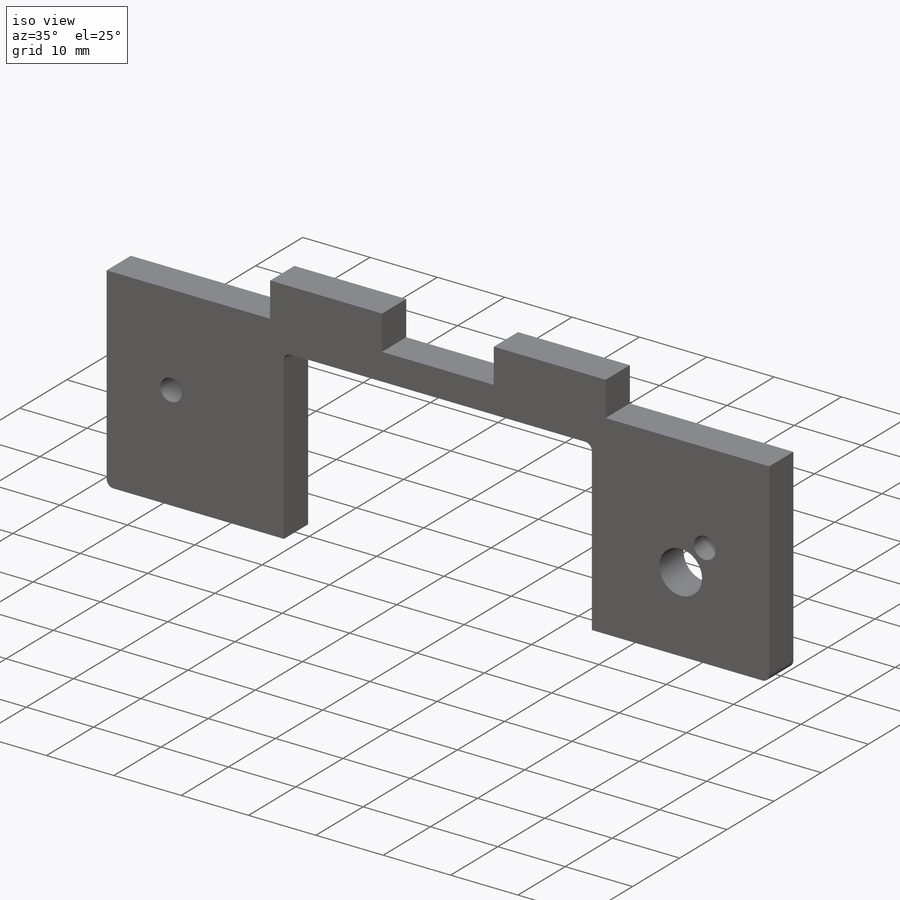
[diagram: iso view]
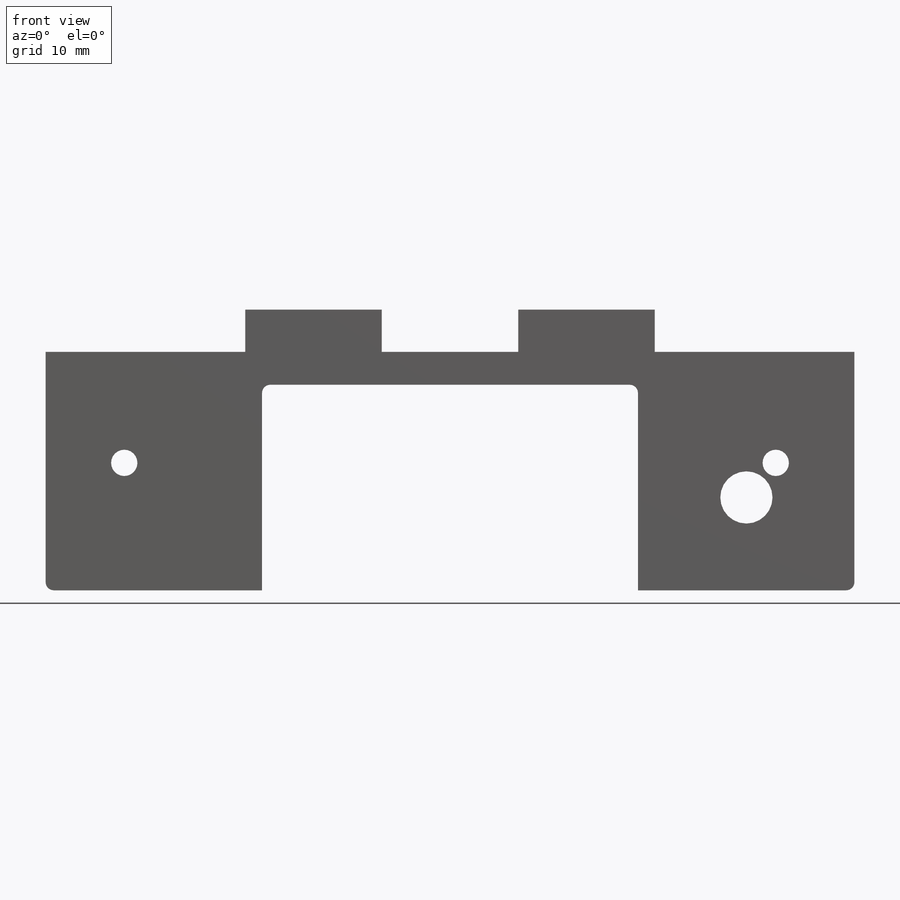
[diagram: front view]
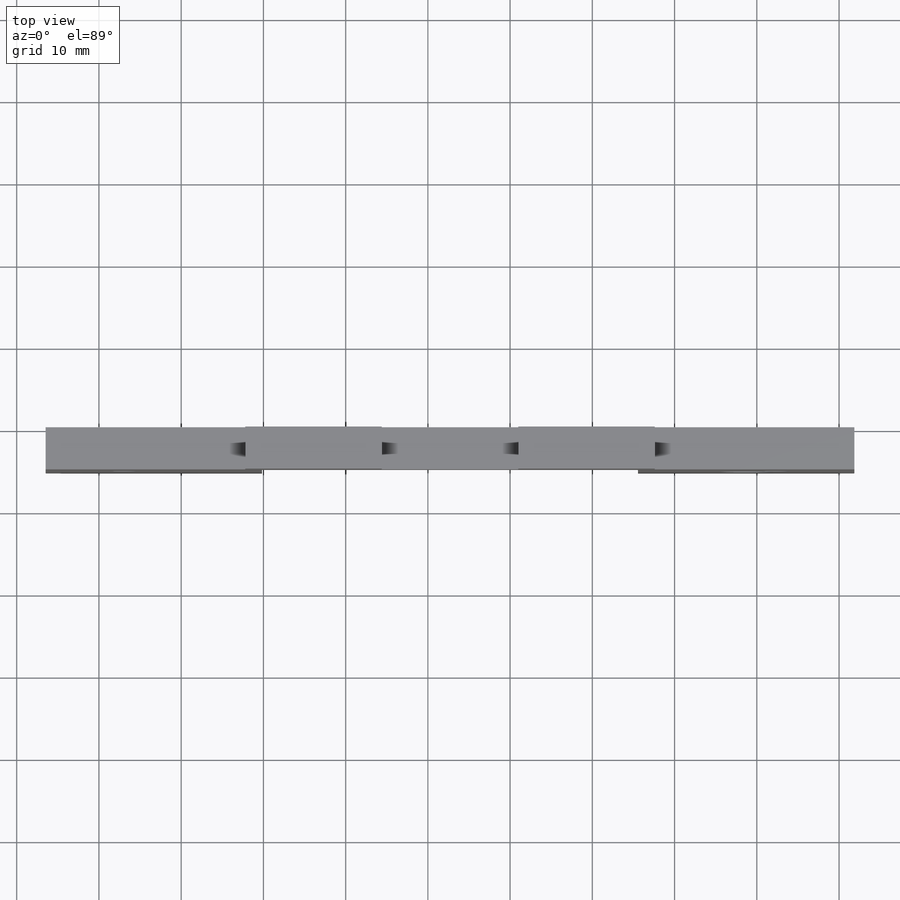
[diagram: top view]
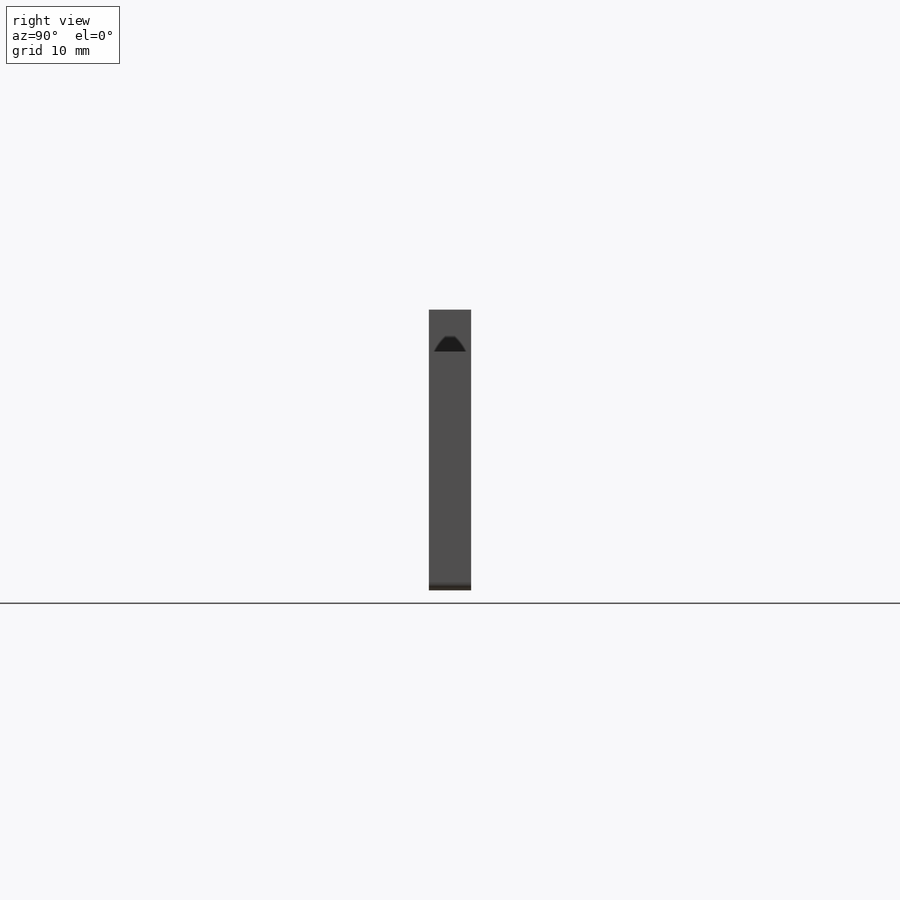
[diagram: right view]
SOLIDWORKS PART (.sldprt)
format: sldprt  version: not decoded by parser v0  size: 230,400 bytes
history: native  units: mm
features: sketch x6, extrude x2, cut_extrude x2, material x1, hole x1 (+11 scaffold rows collapsed)
feature tree (23):
  scaffold x11  (default folders/planes/origin — collapsed)
  material  "Material <not specified>"
  sketch  "Sketch1"  dims[c1.D3=1.0mm c1.D1=98.36mm c1.D2=29.0mm c2.D3=98.36mm c3.D3=90.0deg]
  extrude  "Main"  Depth=5.13mm
  sketch  "Sketch2"  dims[D1=16.6mm D3=49.8mm D4=24.28mm D2=2.0]
  extrude  "Teeth"  Depth=5.13mm
  hole  "M3 Clearance Hole1"  Diameter=3.2mm Depth=5.13mm
  sketch  "Sketch4"  dims[D1=9.565mm D2=15.5mm D3=9.565mm D4=15.5mm]
  sketch  "Sketch3"  dims[hole-wizard template sketch: 60 standard entries collapsed; hole parameters kept: c18.Thru Hole Depth=5.13mm]
  sketch  "Sketch5"  dims[D4=1.0mm D1=45.72mm D2=25.0mm D3=26.32mm]
  cut_extrude  "Hinge slot"  [1 undecoded]
  sketch  "Sketch6"  dims[D1=6.35mm D2=13.133mm]
  cut_extrude  "Thermistor wires hole"  [1 undecoded]
decode coverage: 9 of 11 modeling features carry decoded parameters
note: ~ marks probable driven/reference dimensions
note: 2 parameter values undecoded
note: suppression state not decoded; provenance and decode notes live in map.json
